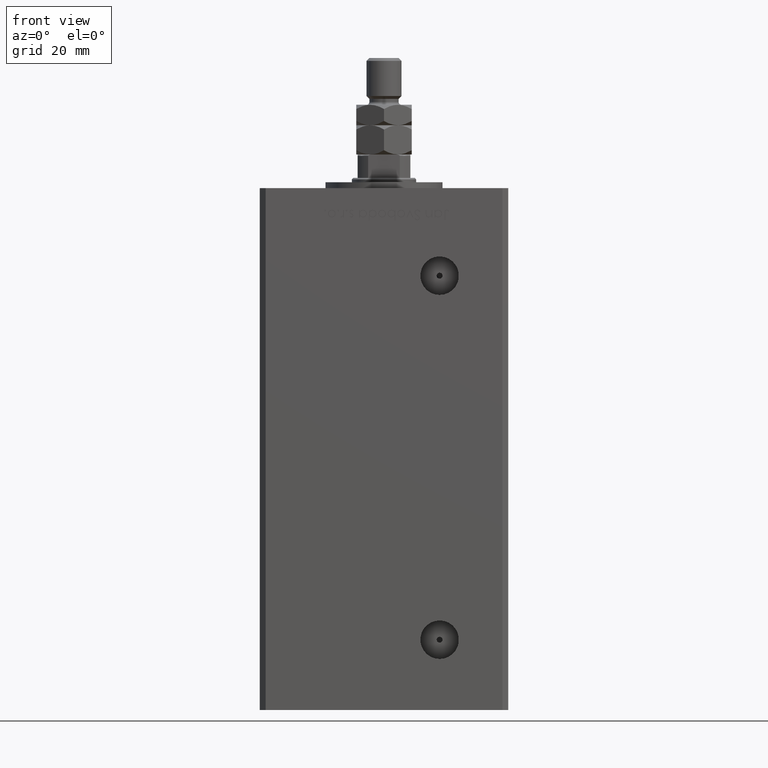
[diagram: clean part render]
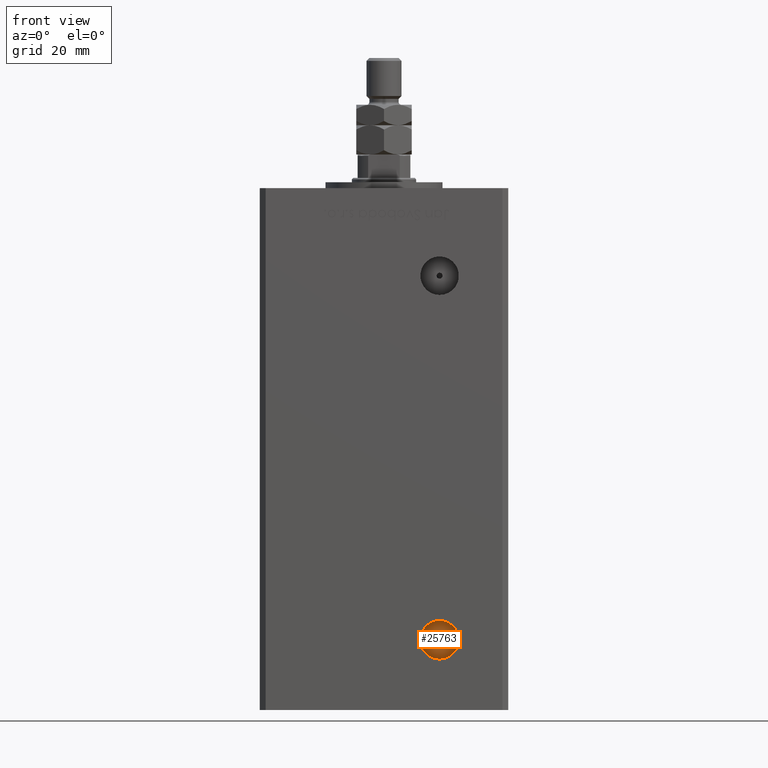
[diagram: same view with one face highlighted and labeled with its STEP entity id]
A machine part, front view. The second image highlights one B-rep face of the part: STEP entity #25763.
In plain terms, the highlighted planar face has unit normal (0, -1, 0).
Its self-contained STEP definition (entity closure, byte-faithful):
#749 = EDGE_CURVE ( 'NONE', #12372, #2340, #7927, .T. ) ;
#2073 = DIRECTION ( 'NONE',  ( 0.000000000000000000, -0.000000000000000000, -1.000000000000000000 ) ) ;
#2340 = VERTEX_POINT ( 'NONE', #39131 ) ;
#6996 = CARTESIAN_POINT ( 'NONE',  ( 18.99999999999998934, -24.50000000000000711, 9.000000000000007105 ) ) ;
#7927 = CIRCLE ( 'NONE', #38340, 6.579999999999998295 ) ;
#9394 = ORIENTED_EDGE ( 'NONE', *, *, #46511, .T. ) ;
#12372 = VERTEX_POINT ( 'NONE', #14170 ) ;
#12856 = VERTEX_POINT ( 'NONE', #36955 ) ;
#13604 = CARTESIAN_POINT ( 'NONE',  ( 18.99999999999998934, -24.50000000000000711, 9.000000000000007105 ) ) ;
#14170 = CARTESIAN_POINT ( 'NONE',  ( 18.99999999999998934, -24.50000000000000711, 15.58000000000000718 ) ) ;
#14592 = DIRECTION ( 'NONE',  ( 0.000000000000000000, -1.000000000000000000, 0.000000000000000000 ) ) ;
#14786 = EDGE_LOOP ( 'NONE', ( #9394, #33880 ) ) ;
#15881 = AXIS2_PLACEMENT_3D ( 'NONE', #13604, #26388, #42978 ) ;
#17930 = VERTEX_POINT ( 'NONE', #33297 ) ;
#19452 = PLANE ( 'NONE',  #30572 ) ;
#22008 = ORIENTED_EDGE ( 'NONE', *, *, #27718, .F. ) ;
#23403 = EDGE_CURVE ( 'NONE', #17930, #12856, #23536, .T. ) ;
#23443 = EDGE_LOOP ( 'NONE', ( #22008, #31839 ) ) ;
#23536 = CIRCLE ( 'NONE', #52247, 1.000000000000000888 ) ;
#23573 = DIRECTION ( 'NONE',  ( 0.000000000000000000, -1.000000000000000000, 0.000000000000000000 ) ) ;
#25763 = ADVANCED_FACE ( 'NONE', ( #40123, #44211 ), #19452, .T. ) ;
#26388 = DIRECTION ( 'NONE',  ( 0.000000000000000000, -1.000000000000000000, 0.000000000000000000 ) ) ;
#27718 = EDGE_CURVE ( 'NONE', #12856, #17930, #48896, .T. ) ;
#29941 = DIRECTION ( 'NONE',  ( 0.000000000000000000, -1.000000000000000000, 0.000000000000000000 ) ) ;
#30572 = AXIS2_PLACEMENT_3D ( 'NONE', #36053, #52909, #2073 ) ;
#31839 = ORIENTED_EDGE ( 'NONE', *, *, #23403, .F. ) ;
#33297 = CARTESIAN_POINT ( 'NONE',  ( 18.99999999999998934, -24.50000000000000711, 10.00000000000000888 ) ) ;
#33880 = ORIENTED_EDGE ( 'NONE', *, *, #749, .T. ) ;
#34531 = AXIS2_PLACEMENT_3D ( 'NONE', #6996, #23573, #48607 ) ;
#36053 = CARTESIAN_POINT ( 'NONE',  ( 18.99999999999998934, -24.50000000000000711, 9.000000000000007105 ) ) ;
#36955 = CARTESIAN_POINT ( 'NONE',  ( 18.99999999999998934, -24.50000000000000711, 8.000000000000007105 ) ) ;
#37112 = CIRCLE ( 'NONE', #34531, 6.579999999999998295 ) ;
#38340 = AXIS2_PLACEMENT_3D ( 'NONE', #43433, #14592, #43700 ) ;
#39131 = CARTESIAN_POINT ( 'NONE',  ( 18.99999999999998934, -24.50000000000000711, 2.420000000000009699 ) ) ;
#40123 = FACE_BOUND ( 'NONE', #23443, .T. ) ;
#40233 = DIRECTION ( 'NONE',  ( 0.000000000000000000, 0.000000000000000000, -1.000000000000000000 ) ) ;
#42978 = DIRECTION ( 'NONE',  ( 0.000000000000000000, 0.000000000000000000, -1.000000000000000000 ) ) ;
#43433 = CARTESIAN_POINT ( 'NONE',  ( 18.99999999999998934, -24.50000000000000711, 9.000000000000007105 ) ) ;
#43700 = DIRECTION ( 'NONE',  ( 0.000000000000000000, 0.000000000000000000, -1.000000000000000000 ) ) ;
#44211 = FACE_OUTER_BOUND ( 'NONE', #14786, .T. ) ;
#46511 = EDGE_CURVE ( 'NONE', #2340, #12372, #37112, .T. ) ;
#48607 = DIRECTION ( 'NONE',  ( 0.000000000000000000, 0.000000000000000000, -1.000000000000000000 ) ) ;
#48896 = CIRCLE ( 'NONE', #15881, 1.000000000000000888 ) ;
#50611 = CARTESIAN_POINT ( 'NONE',  ( 18.99999999999998934, -24.50000000000000711, 9.000000000000007105 ) ) ;
#52247 = AXIS2_PLACEMENT_3D ( 'NONE', #50611, #29941, #40233 ) ;
#52909 = DIRECTION ( 'NONE',  ( 0.000000000000000000, -1.000000000000000000, 0.000000000000000000 ) ) ;